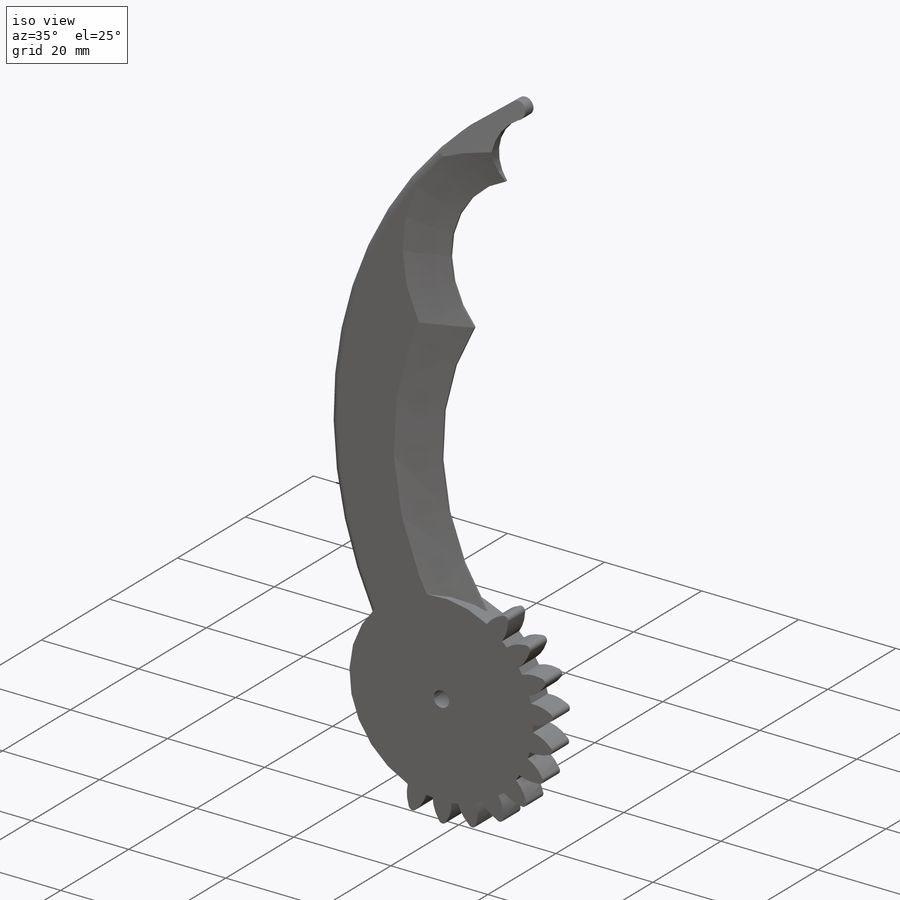
[diagram: iso view]
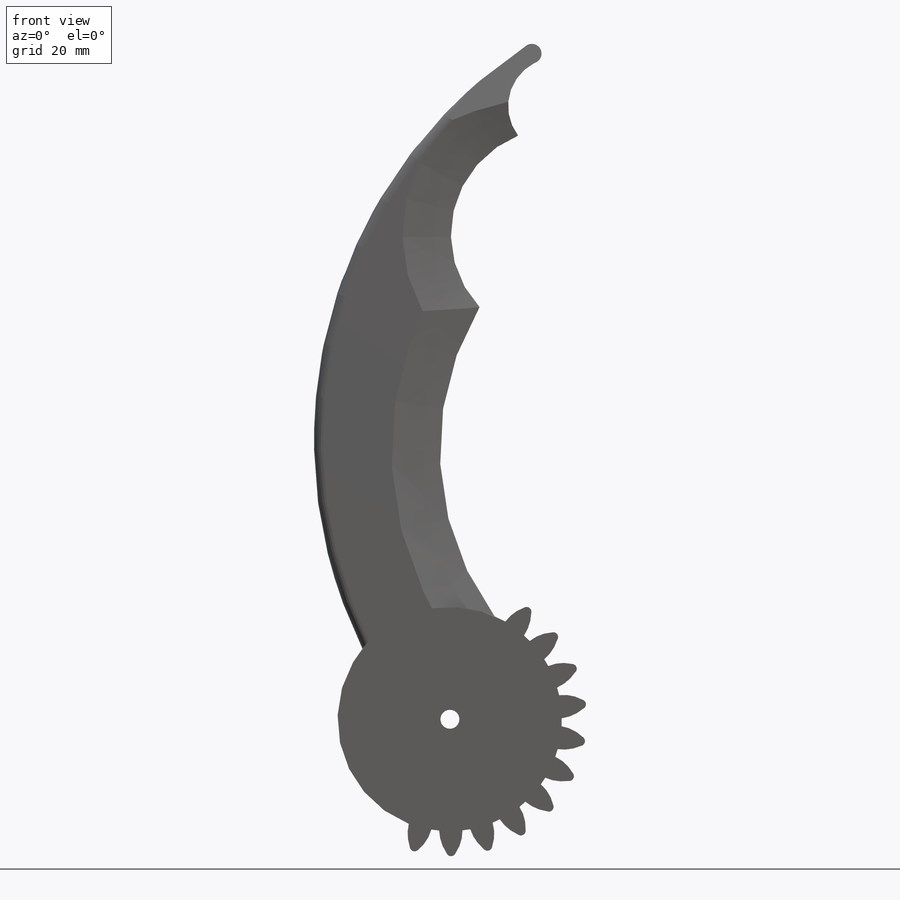
[diagram: front view]
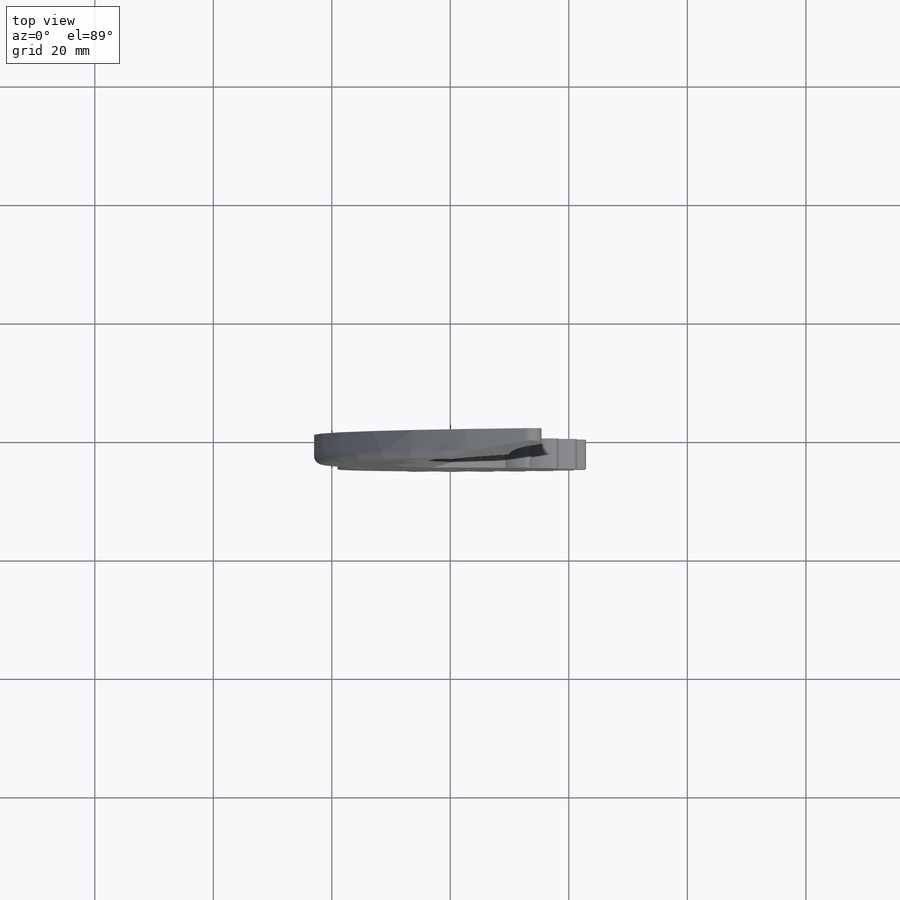
[diagram: top view]
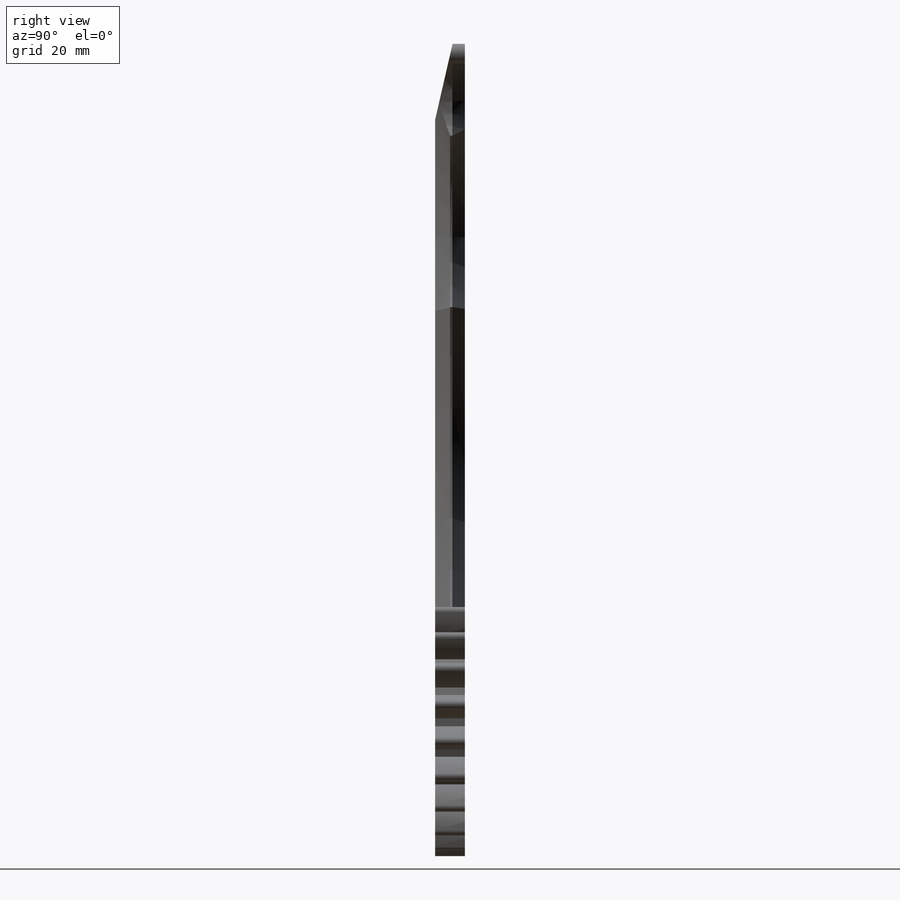
[diagram: right view]
SOLIDWORKS PART (.sldprt)
format: sldprt  version: not decoded by parser v0  size: 525,312 bytes
history: native  units: mm
features: plane x3, sketch x2, chamfer x2, material x1, extrude x1, fillet x1, cut_extrude x1 (+10 scaffold rows collapsed)
feature tree (21):
  scaffold x10  (default folders/planes/origin — collapsed)
  material  "Material <sin especificar>"
  plane  "Alzado"
  plane  "Planta"
  plane  "Vista lateral"
  sketch  "Croquis1"  dims[D1=~3.015002mm]
  extrude  "Base pinza Izq"  Depth=5mm
  chamfer  "Filo Pinza Izq frente"  Distance=2.5mm Angle=73deg
  chamfer  "Filo Pinza Izq trasera"  Distance=2.5mm Angle=40deg
  fillet  "Redondeo pinza"  Radius=1.5mm
  sketch  "Croquis2"
  cut_extrude  "Filo punta de la pinza"  Depth=25mm
decode coverage: 6 of 7 modeling features carry decoded parameters
note: ~ marks probable driven/reference dimensions
note: suppression state not decoded; provenance and decode notes live in map.json
